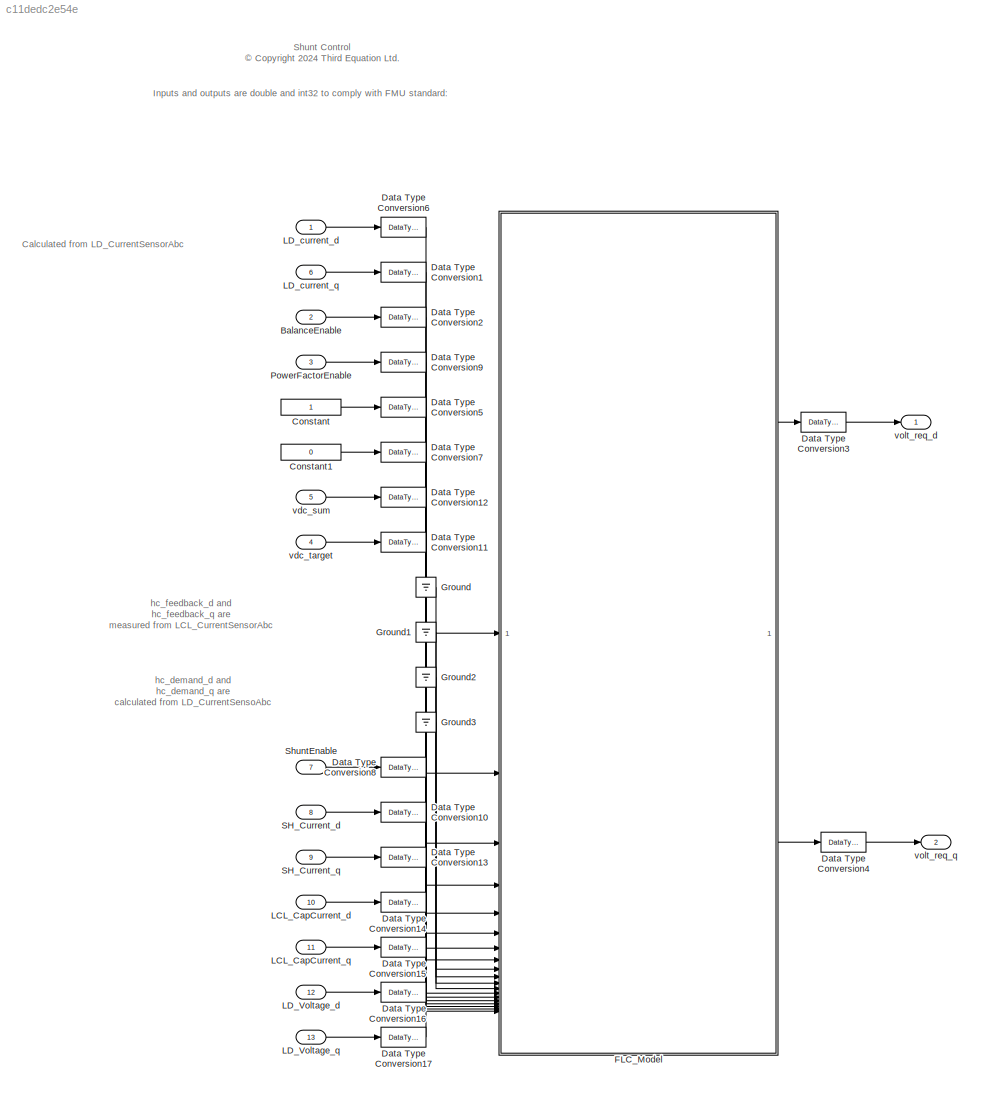
MODEL slx_c11dedc2e54e
KIND model
BLOCK [Inport] BalanceEnable
  OutDataTypeStr = int32
  Port = 2
  PortDimensions = 1
BLOCK [Constant] Constant
  OutDataTypeStr = int32
BLOCK [Constant] Constant1
  OutDataTypeStr = int32
  Value = 0
BLOCK [DataTypeConversion] Data Type Conversion1
  RndMeth = Floor
  SaturateOnIntegerOverflow = off
BLOCK [DataTypeConversion] Data Type Conversion10
  RndMeth = Floor
  SaturateOnIntegerOverflow = off
BLOCK [DataTypeConversion] Data Type Conversion11
  RndMeth = Floor
  SaturateOnIntegerOverflow = off
BLOCK [DataTypeConversion] Data Type Conversion12
  RndMeth = Floor
  SaturateOnIntegerOverflow = off
BLOCK [DataTypeConversion] Data Type Conversion13
  RndMeth = Floor
  SaturateOnIntegerOverflow = off
BLOCK [DataTypeConversion] Data Type Conversion14
  RndMeth = Floor
  SaturateOnIntegerOverflow = off
BLOCK [DataTypeConversion] Data Type Conversion15
  RndMeth = Floor
  SaturateOnIntegerOverflow = off
BLOCK [DataTypeConversion] Data Type Conversion16
  RndMeth = Floor
  SaturateOnIntegerOverflow = off
BLOCK [DataTypeConversion] Data Type Conversion17
  RndMeth = Floor
  SaturateOnIntegerOverflow = off
BLOCK [DataTypeConversion] Data Type Conversion2
  RndMeth = Floor
  SaturateOnIntegerOverflow = off
BLOCK [DataTypeConversion] Data Type Conversion3
  RndMeth = Floor
  SaturateOnIntegerOverflow = off
BLOCK [DataTypeConversion] Data Type Conversion4
  RndMeth = Floor
  SaturateOnIntegerOverflow = off
BLOCK [DataTypeConversion] Data Type Conversion5
  RndMeth = Floor
  SaturateOnIntegerOverflow = off
BLOCK [DataTypeConversion] Data Type Conversion6
  RndMeth = Floor
  SaturateOnIntegerOverflow = off
BLOCK [DataTypeConversion] Data Type Conversion7
  RndMeth = Floor
  SaturateOnIntegerOverflow = off
BLOCK [DataTypeConversion] Data Type Conversion8
  RndMeth = Floor
  SaturateOnIntegerOverflow = off
BLOCK [DataTypeConversion] Data Type Conversion9
  RndMeth = Floor
  SaturateOnIntegerOverflow = off
BLOCK [ModelReference] FLC_Model
  CopyOfModelProtected = on
  ModelNameDialog = SH_core_control_protected.slxp
  ModelReferenceVersion = 1.55
  PortSchema = {"entries":[{"content":{"sides":[{"content":{"connectorIds":["In1","In3","In2","In4","In7","In8","In6","In5","In9","In10","In11","In12","In13","In14","In15","In16","In17","In18","In19"]},"type":"ConnectorPlacement.EquallySpacedRectSide","uuid":"23c75067-9470-41eb-93ec-30ae2c10cb0d"},{"content":{"connectorIds":["Out1","Out2"],"side":"RIGHT"},"type":"ConnectorPlacement.EquallySpacedRectSide","uuid":...<+347ch>
BLOCK [Ground] Ground
BLOCK [Ground] Ground1
BLOCK [Ground] Ground2
BLOCK [Ground] Ground3
BLOCK [Inport] LCL_CapCurrent_d
  OutDataTypeStr = double
  Port = 10
  PortDimensions = 3
BLOCK [Inport] LCL_CapCurrent_q
  OutDataTypeStr = double
  Port = 11
  PortDimensions = 3
BLOCK [Inport] LD_Voltage_d
  OutDataTypeStr = double
  Port = 12
  PortDimensions = 3
BLOCK [Inport] LD_Voltage_q
  OutDataTypeStr = double
  Port = 13
  PortDimensions = 3
BLOCK [Inport] LD_current_d
  OutDataTypeStr = double
  PortDimensions = 3
BLOCK [Inport] LD_current_q
  OutDataTypeStr = double
  Port = 6
  PortDimensions = 3
BLOCK [Inport] PowerFactorEnable
  OutDataTypeStr = int32
  Port = 3
  PortDimensions = 1
BLOCK [Inport] SH_Current_d
  OutDataTypeStr = double
  Port = 8
  PortDimensions = 3
BLOCK [Inport] SH_Current_q
  OutDataTypeStr = double
  Port = 9
  PortDimensions = 3
BLOCK [Inport] ShuntEnable
  OutDataTypeStr = int32
  Port = 7
  PortDimensions = 1
BLOCK [Inport] vdc_sum
  OutDataTypeStr = double
  Port = 5
  PortDimensions = 1
BLOCK [Inport] vdc_target
  OutDataTypeStr = double
  Port = 4
  PortDimensions = 1
BLOCK [Outport] volt_req_d
  OutDataTypeStr = double
  PortDimensions = 3
BLOCK [Outport] volt_req_q
  OutDataTypeStr = double
  Port = 2
  PortDimensions = 3
ANNOTATION (root): Shunt Control <copyright redacted>
ANNOTATION (root): Inputs and outputs are double and int32 to comply with FMU standard:
ANNOTATION (root): Calculated from LD_CurrentSensorAbc
ANNOTATION (root): hc_demand_d and hc_demand_q are calculated from LD_CurrentSensoAbc
ANNOTATION (root): hc_feedback_d and hc_feedback_q are measured from LCL_CurrentSensorAbc
LINE BalanceEnable:1 -> Data Type Conversion2:1
LINE Constant1:1 -> Data Type Conversion7:1
LINE Constant:1 -> Data Type Conversion5:1
LINE Data Type Conversion10:1 -> FLC_Model:14
LINE Data Type Conversion11:1 -> FLC_Model:5
LINE Data Type Conversion12:1 -> FLC_Model:6
LINE Data Type Conversion13:1 -> FLC_Model:15
LINE Data Type Conversion14:1 -> FLC_Model:16
LINE Data Type Conversion15:1 -> FLC_Model:17
LINE Data Type Conversion16:1 -> FLC_Model:18
LINE Data Type Conversion17:1 -> FLC_Model:19
LINE Data Type Conversion1:1 -> FLC_Model:3
LINE Data Type Conversion2:1 -> FLC_Model:2
LINE Data Type Conversion3:1 -> volt_req_d:1
LINE Data Type Conversion4:1 -> volt_req_q:1
LINE Data Type Conversion5:1 -> FLC_Model:7
LINE Data Type Conversion6:1 -> FLC_Model:1
LINE Data Type Conversion7:1 -> FLC_Model:8
LINE Data Type Conversion8:1 -> FLC_Model:13
LINE Data Type Conversion9:1 -> FLC_Model:4
LINE FLC_Model:1 -> Data Type Conversion3:1
LINE FLC_Model:2 -> Data Type Conversion4:1
LINE Ground1:1 -> FLC_Model:10
LINE Ground2:1 -> FLC_Model:11
LINE Ground3:1 -> FLC_Model:12
LINE Ground:1 -> FLC_Model:9
LINE LCL_CapCurrent_d:1 -> Data Type Conversion14:1
LINE LCL_CapCurrent_q:1 -> Data Type Conversion15:1
LINE LD_Voltage_d:1 -> Data Type Conversion16:1
LINE LD_Voltage_q:1 -> Data Type Conversion17:1
LINE LD_current_d:1 -> Data Type Conversion6:1
LINE LD_current_q:1 -> Data Type Conversion1:1
LINE PowerFactorEnable:1 -> Data Type Conversion9:1
LINE SH_Current_d:1 -> Data Type Conversion10:1
LINE SH_Current_q:1 -> Data Type Conversion13:1
LINE ShuntEnable:1 -> Data Type Conversion8:1
LINE vdc_sum:1 -> Data Type Conversion12:1
LINE vdc_target:1 -> Data Type Conversion11:1
